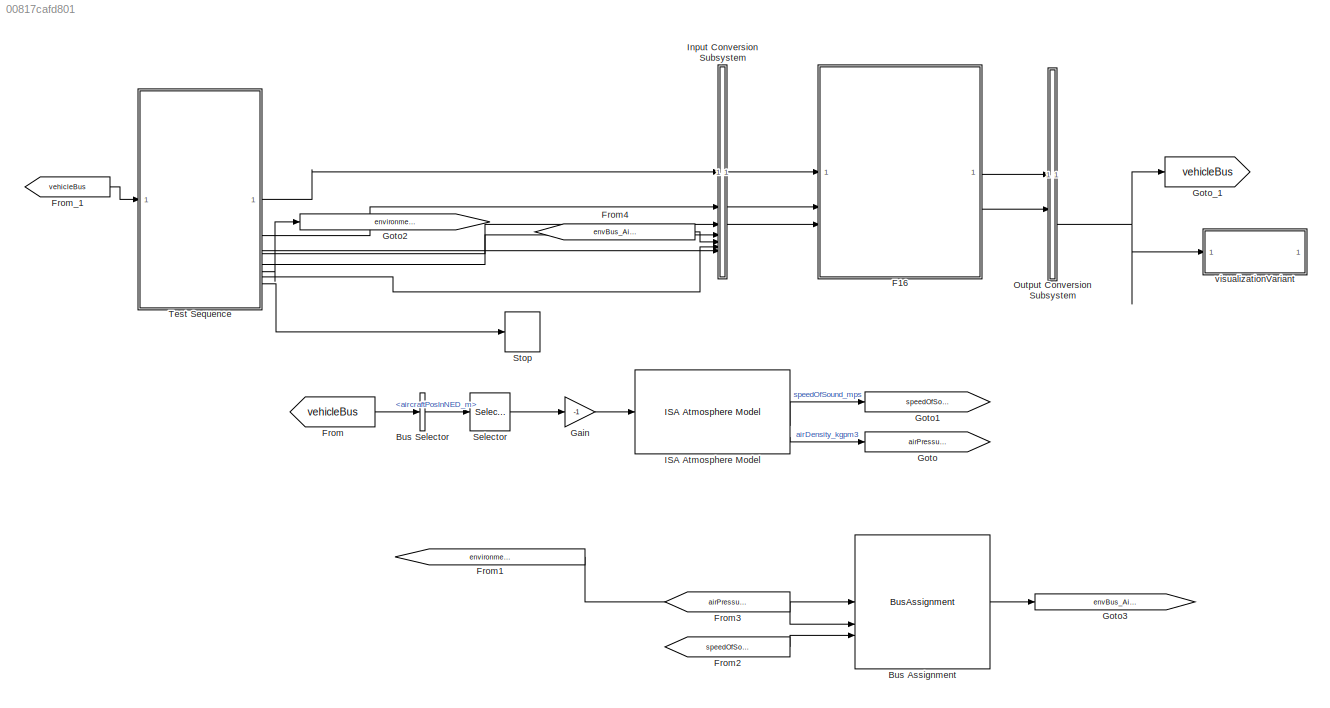
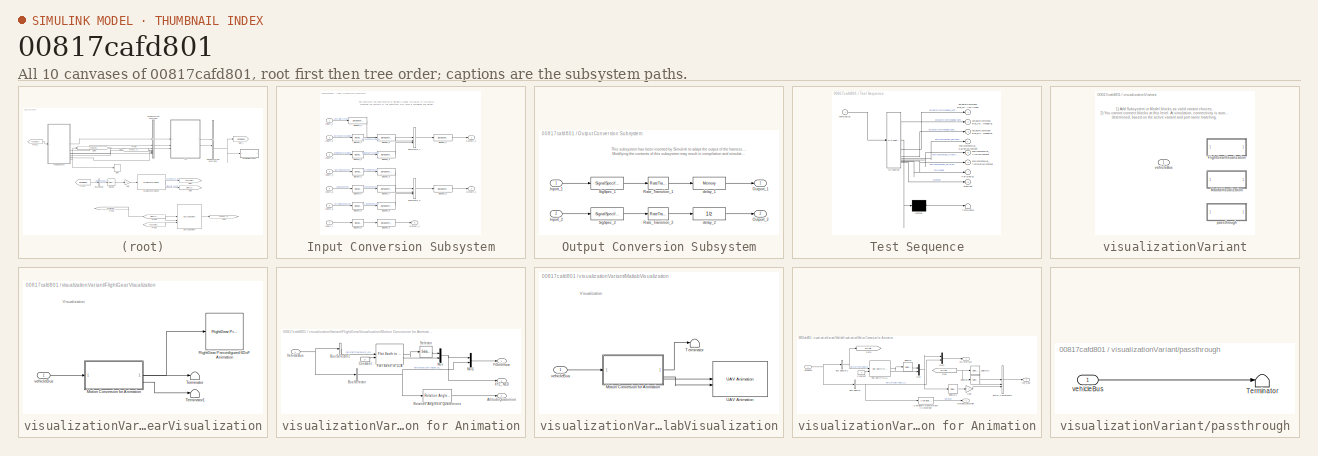
[diagram: thumbnail index - all 10 canvases of the model, root first then tree order]
MODEL slx_00817cafd801
KIND model
BLOCK [BusAssignment] Bus Assignment
  AssignedSignals = airDensity_kgpm3,speedOfSound_mps
BLOCK [BusSelector] Bus Selector
  OutputSignals = BodyStatesBus.aircraftPosInNED_m
BLOCK [ModelReference] F16
  ModelNameDialog = F16
  ModelReferenceVersion = 1.120
BLOCK [From] From
  GotoTag = vehicleBus
BLOCK [From] From1
  GotoTag = environmentBus_AirEnvironment
BLOCK [From] From2
  GotoTag = speedOfSound
BLOCK [From] From3
  GotoTag = airPressure_kgpm3
BLOCK [From] From4
  GotoTag = envBus_AirEnvManip
BLOCK [From] From_1
  GotoTag = vehicleBus
BLOCK [Gain] Gain
  Gain = -1
BLOCK [Goto] Goto
  GotoTag = airPressure_kgpm3
BLOCK [Goto] Goto1
  GotoTag = speedOfSound
BLOCK [Goto] Goto2
  GotoTag = environmentBus_AirEnvironment
BLOCK [Goto] Goto3
  GotoTag = envBus_AirEnvManip
BLOCK [Goto] Goto_1
  GotoTag = vehicleBus
BLOCK [Reference] ISA Atmosphere Model  REF=aerolibatmos2/ISA Atmosphere Model
  SourceBlock = aerolibatmos2/ISA Atmosphere Model
  SourceType = International Standard Atmosphere Model
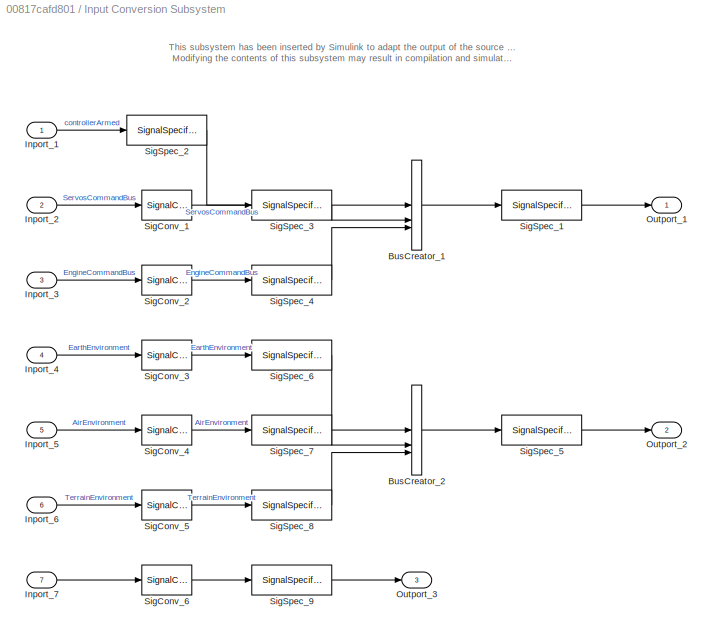
BLOCK [SubSystem] Input Conversion Subsystem
  AttributesFormatString = %<Description>
  Description = Signal spec.\nand routing
  Permissions = ReadOnly
  PermitHierarchicalResolution = ExplicitOnly
  Tag = __SLT_ICS__
  TreatAsGroupedWhenPropagatingVariantConditions = off
  UserDataPersistent = on
BLOCK [BusCreator] Input Conversion Subsystem/BusCreator_1
  InheritFromInputs = on
  Inputs = 3
  OutDataTypeStr = Bus: ActuatorCommandBus
BLOCK [BusCreator] Input Conversion Subsystem/BusCreator_2
  InheritFromInputs = on
  Inputs = 3
  OutDataTypeStr = Bus: EnvironmentBus
BLOCK [Inport] Input Conversion Subsystem/Inport_1
BLOCK [Inport] Input Conversion Subsystem/Inport_2
  Port = 2
BLOCK [Inport] Input Conversion Subsystem/Inport_3
  Port = 3
BLOCK [Inport] Input Conversion Subsystem/Inport_4
  Port = 4
BLOCK [Inport] Input Conversion Subsystem/Inport_5
  Port = 5
BLOCK [Inport] Input Conversion Subsystem/Inport_6
  Port = 6
BLOCK [Inport] Input Conversion Subsystem/Inport_7
  Port = 7
BLOCK [Outport] Input Conversion Subsystem/Outport_1
BLOCK [Outport] Input Conversion Subsystem/Outport_2
  Port = 2
BLOCK [Outport] Input Conversion Subsystem/Outport_3
  Port = 3
BLOCK [SignalConversion] Input Conversion Subsystem/SigConv_1
  ConversionOutput = Nonvirtual bus
  OverrideOpt = off
BLOCK [SignalConversion] Input Conversion Subsystem/SigConv_2
  ConversionOutput = Nonvirtual bus
  OverrideOpt = off
BLOCK [SignalConversion] Input Conversion Subsystem/SigConv_3
  ConversionOutput = Nonvirtual bus
  OverrideOpt = off
BLOCK [SignalConversion] Input Conversion Subsystem/SigConv_4
  ConversionOutput = Nonvirtual bus
  OverrideOpt = off
BLOCK [SignalConversion] Input Conversion Subsystem/SigConv_5
  ConversionOutput = Nonvirtual bus
  OverrideOpt = off
BLOCK [SignalConversion] Input Conversion Subsystem/SigConv_6
  ConversionOutput = Virtual bus
  OverrideOpt = off
BLOCK [SignalSpecification] Input Conversion Subsystem/SigSpec_1
  OutDataTypeStr = Bus: ActuatorCommandBus
  SampleTime = [-1, 0]
BLOCK [SignalSpecification] Input Conversion Subsystem/SigSpec_2
  Dimensions = [1]
  OutDataTypeStr = double
  SampleTime = [-1, 0]
  SignalType = real
  VarSizeSig = No
BLOCK [SignalSpecification] Input Conversion Subsystem/SigSpec_3
  BusOutputAsStruct = on
  Dimensions = [1]
  OutDataTypeStr = Bus: ServosCommandBus
  SampleTime = [-1, 0]
  SignalType = real
  VarSizeSig = No
BLOCK [SignalSpecification] Input Conversion Subsystem/SigSpec_4
  BusOutputAsStruct = on
  Dimensions = [1]
  OutDataTypeStr = Bus: EngineCommandBus
  SampleTime = [-1, 0]
  SignalType = real
  VarSizeSig = No
BLOCK [SignalSpecification] Input Conversion Subsystem/SigSpec_5
  OutDataTypeStr = Bus: EnvironmentBus
  SampleTime = [-1, 0]
BLOCK [SignalSpecification] Input Conversion Subsystem/SigSpec_6
  BusOutputAsStruct = on
  Dimensions = [1]
  OutDataTypeStr = Bus: EarthEnvironmentBus
  SampleTime = [-1, 0]
  SignalType = real
  VarSizeSig = No
BLOCK [SignalSpecification] Input Conversion Subsystem/SigSpec_7
  BusOutputAsStruct = on
  Dimensions = [1]
  OutDataTypeStr = Bus: AirEnvironmentBus
  SampleTime = [-1, 0]
  SignalType = real
  VarSizeSig = No
BLOCK [SignalSpecification] Input Conversion Subsystem/SigSpec_8
  BusOutputAsStruct = on
  Dimensions = [1]
  OutDataTypeStr = Bus: TerrainEnvironmentBus
  SampleTime = [-1, 0]
  SignalType = real
  VarSizeSig = No
BLOCK [SignalSpecification] Input Conversion Subsystem/SigSpec_9
  OutDataTypeStr = Bus: FailureBus
BLOCK [SubSystem] Output Conversion Subsystem
  AttributesFormatString = %<Description>
  Description = Signal spec.\nand routing
  Permissions = ReadOnly
  PermitHierarchicalResolution = ExplicitOnly
  Tag = __SLT_OCS__
  TreatAsGroupedWhenPropagatingVariantConditions = off
  UserDataPersistent = on
BLOCK [Inport] Output Conversion Subsystem/Inport_1
BLOCK [Inport] Output Conversion Subsystem/Inport_2
  Port = 2
BLOCK [Outport] Output Conversion Subsystem/Outport_1
BLOCK [Outport] Output Conversion Subsystem/Outport_2
  Port = 2
BLOCK [RateTransition] Output Conversion Subsystem/Rate_Transition_1
  OutPortSampleTimeOpt = Inherit
BLOCK [RateTransition] Output Conversion Subsystem/Rate_Transition_2
  OutPortSampleTimeOpt = Inherit
BLOCK [SignalSpecification] Output Conversion Subsystem/SigSpec_1
  Dimensions = [1]
  OutDataTypeStr = Bus: VehicleBus
  SignalType = real
  VarSizeSig = No
BLOCK [SignalSpecification] Output Conversion Subsystem/SigSpec_2
  Dimensions = [1]
  OutDataTypeStr = Bus: ActuatorBus
  SignalType = real
  VarSizeSig = No
BLOCK [Memory] Output Conversion Subsystem/delay_1
  InitialCondition = IC1
BLOCK [UnitDelay] Output Conversion Subsystem/delay_2
  InitialCondition = IC2
  SampleTime = -1
BLOCK [Selector] Selector
  IndexOptions = Index vector (dialog)
  Indices = 3
  InputPortWidth = 3
  OutputSizes = 1
BLOCK [Stop] Stop
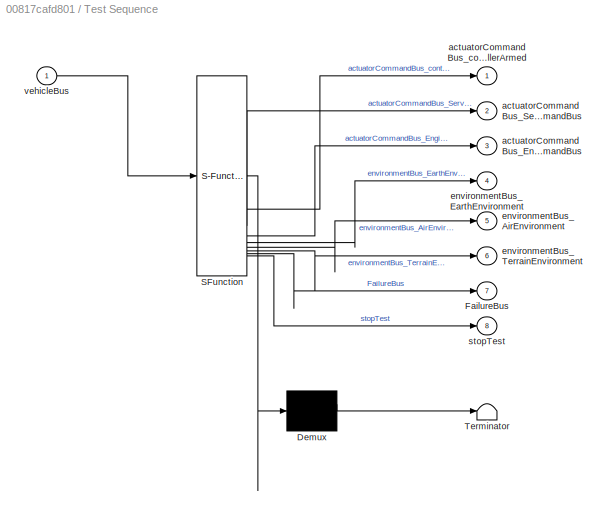
BLOCK [SubSystem] Test Sequence
  ErrorFcn = Stateflow.Translate.translate
  PermitHierarchicalResolution = ExplicitOnly
  SFBlockType = Test Sequence
  ShowPortLabels = none
  TreatAsAtomicUnit = on
BLOCK [Demux] Test Sequence/ Demux 
  Outputs = 1
BLOCK [S-Function] Test Sequence/ SFunction 
  EnableBusSupport = on
  FunctionName = sf_sfun
  Parameters = 1,terrainHeightNED_m
  PortCounts = [1 9]
  SFcnIsStateOwnerBlock = off
  SFunctionDeploymentMode = off
  Tag = Stateflow S-Function 4
BLOCK [Terminator] Test Sequence/ Terminator 
BLOCK [Outport] Test Sequence/FailureBus
  Port = 7
BLOCK [Outport] Test Sequence/actuatorCommandBus_EngineCommandBus
  Port = 3
BLOCK [Outport] Test Sequence/actuatorCommandBus_ServosCommandBus
  Port = 2
BLOCK [Outport] Test Sequence/actuatorCommandBus_controllerArmed
BLOCK [Outport] Test Sequence/environmentBus_AirEnvironment
  Port = 5
BLOCK [Outport] Test Sequence/environmentBus_EarthEnvironment
  Port = 4
BLOCK [Outport] Test Sequence/environmentBus_TerrainEnvironment
  Port = 6
BLOCK [Outport] Test Sequence/stopTest
  Port = 8
BLOCK [Inport] Test Sequence/vehicleBus
BLOCK [SubSystem] visualizationVariant
  Commented = on
  Variant = on
BLOCK [SubSystem] visualizationVariant/FlightGearVisualization
  TreatAsAtomicUnit = on
  VariantControl = strcmp(visualizationType, "FlightGear")
BLOCK [Reference] visualizationVariant/FlightGearVisualization/FlightGear Preconfigured 6DoF Animation  REF=aerolibfltsims/FlightGear
Preconfigured
6DoF Animation
  SourceBlock = aerolibfltsims/FlightGear\nPreconfigured\n6DoF Animation
  SourceType = FlightGearQuick6DoFAnimation
BLOCK [SubSystem] visualizationVariant/FlightGearVisualization/Motion Conversion for Animation
BLOCK [Outport] visualizationVariant/FlightGearVisualization/Motion Conversion for Animation/AttitudeQuaternion
  Port = 3
  VectorParamsAs1DForOutWhenUnconnected = off
BLOCK [BusSelector] visualizationVariant/FlightGearVisualization/Motion Conversion for Animation/Bus Selector
  OutputSignals = BodyStates.aircraftEulerAngles_rad
BLOCK [BusSelector] visualizationVariant/FlightGearVisualization/Motion Conversion for Animation/Bus Selector1
  OutputSignals = BodyStates.aircraftPosInNED_m
BLOCK [Constant] visualizationVariant/FlightGearVisualization/Motion Conversion for Animation/Constant
  Value = 0
BLOCK [Outport] visualizationVariant/FlightGearVisualization/Motion Conversion for Animation/FGInterface
  VectorParamsAs1DForOutWhenUnconnected = off
BLOCK [Reference] visualizationVariant/FlightGearVisualization/Motion Conversion for Animation/Flat Earth to LLA  REF=aerolibtransform2/Flat Earth to LLA
  SourceBlock = aerolibtransform2/Flat Earth to LLA
  SourceType = Flat Earth to LLA
BLOCK [Mux] visualizationVariant/FlightGearVisualization/Motion Conversion for Animation/Mux
  DisplayOption = bar
  Inputs = 2
BLOCK [Mux] visualizationVariant/FlightGearVisualization/Motion Conversion for Animation/Mux1
  DisplayOption = bar
  Inputs = 2
BLOCK [Reference] visualizationVariant/FlightGearVisualization/Motion Conversion for Animation/Rotation Angles to Quaternions  REF=sharedtransform/Rotation Angles to Quaternions
  AttributesFormatString = Rotation Order: %<rotationOrder>
  LibrarySourceBlock = aerolibtransform2/Rotation Angles to Quaternions
  SourceBlock = sharedtransform/Rotation Angles to Quaternions
  SourceType = Ang2Quat
BLOCK [Selector] visualizationVariant/FlightGearVisualization/Motion Conversion for Animation/Selector
  IndexMode = Zero-based
  IndexOptions = Index vector (dialog)
  Indices = [1 0]
  InputPortWidth = 2
  OutputSizes = 1
BLOCK [Inport] visualizationVariant/FlightGearVisualization/Motion Conversion for Animation/VehicleBus
  OutDataTypeStr = Bus: VehicleBus
BLOCK [Outport] visualizationVariant/FlightGearVisualization/Motion Conversion for Animation/XYZ_NED
  Port = 2
  VectorParamsAs1DForOutWhenUnconnected = off
BLOCK [Terminator] visualizationVariant/FlightGearVisualization/Terminator
BLOCK [Terminator] visualizationVariant/FlightGearVisualization/Terminator1
BLOCK [Inport] visualizationVariant/FlightGearVisualization/vehicleBus
BLOCK [SubSystem] visualizationVariant/MatlabVisualization
  VariantControl = strcmp(visualizationType, "Matlab")
BLOCK [SubSystem] visualizationVariant/MatlabVisualization/Motion Conversion for Animation
BLOCK [Outport] visualizationVariant/MatlabVisualization/Motion Conversion for Animation/AttitudeQuaternion
  Port = 3
  VectorParamsAs1DForOutWhenUnconnected = off
BLOCK [BusSelector] visualizationVariant/MatlabVisualization/Motion Conversion for Animation/Bus Selector
  OutputSignals = BodyStates.aircraftEulerAngles_rad
BLOCK [BusSelector] visualizationVariant/MatlabVisualization/Motion Conversion for Animation/Bus Selector1
  OutputSignals = BodyStates.aircraftPosInNED_m
BLOCK [Constant] visualizationVariant/MatlabVisualization/Motion Conversion for Animation/Constant
  Value = 0
BLOCK [Reference] visualizationVariant/MatlabVisualization/Motion Conversion for Animation/Coordinate Transformation Conversion  REF=robotcorelib/Coordinate Transformation Conversion
  NameLocation = top
  SourceBlock = robotcorelib/Coordinate Transformation Conversion
  SourceType = robotics.slcore.internal.block.CoordinateTransformationConversion
BLOCK [Outport] visualizationVariant/MatlabVisualization/Motion Conversion for Animation/FGInterface
  VectorParamsAs1DForOutWhenUnconnected = off
BLOCK [Reference] visualizationVariant/MatlabVisualization/Motion Conversion for Animation/Flat Earth to LLA  REF=aerolibtransform2/Flat Earth to LLA
  SourceBlock = aerolibtransform2/Flat Earth to LLA
  SourceType = Flat Earth to LLA
BLOCK [From] visualizationVariant/MatlabVisualization/Motion Conversion for Animation/From
  GotoTag = aircraftPosInNED_m
BLOCK [Gain] visualizationVariant/MatlabVisualization/Motion Conversion for Animation/Gain
  Gain = -1
BLOCK [Goto] visualizationVariant/MatlabVisualization/Motion Conversion for Animation/Goto
  GotoTag = aircraftPosInNED_m
BLOCK [Mux] visualizationVariant/MatlabVisualization/Motion Conversion for Animation/Mux
  DisplayOption = bar
  Inputs = 2
BLOCK [Mux] visualizationVariant/MatlabVisualization/Motion Conversion for Animation/Mux1
  DisplayOption = bar
  Inputs = 2
BLOCK [Selector] visualizationVariant/MatlabVisualization/Motion Conversion for Animation/Selector
  IndexMode = Zero-based
  IndexOptions = Index vector (dialog)
  Indices = [1 0]
  InputPortWidth = 2
  OutputSizes = 1
BLOCK [Selector] visualizationVariant/MatlabVisualization/Motion Conversion for Animation/Selector1
  IndexOptions = Index vector (dialog)
  Indices = 3
  InputPortWidth = 3
  OutputSizes = 1
BLOCK [Selector] visualizationVariant/MatlabVisualization/Motion Conversion for Animation/Selector2
  IndexOptions = Index vector (dialog)
  Indices = 1
  InputPortWidth = 3
  OutputSizes = 1
BLOCK [Selector] visualizationVariant/MatlabVisualization/Motion Conversion for Animation/Selector3
  IndexOptions = Index vector (dialog)
  Indices = 2
  InputPortWidth = 3
  OutputSizes = 1
BLOCK [Concatenate] visualizationVariant/MatlabVisualization/Motion Conversion for Animation/Vector Concatenate
  NumInputs = 3
BLOCK [Inport] visualizationVariant/MatlabVisualization/Motion Conversion for Animation/VehicleBus
  OutDataTypeStr = Bus: VehicleBus
BLOCK [Outport] visualizationVariant/MatlabVisualization/Motion Conversion for Animation/XYZ_NED
  Port = 2
  VectorParamsAs1DForOutWhenUnconnected = off
BLOCK [Terminator] visualizationVariant/MatlabVisualization/Terminator
BLOCK [Reference] visualizationVariant/MatlabVisualization/UAV Animation  REF=uavutilslib/UAV Animation
  SourceBlock = uavutilslib/UAV Animation
  SourceType = uav.sluav.internal.system.UAVAnimation
BLOCK [Inport] visualizationVariant/MatlabVisualization/vehicleBus
BLOCK [SubSystem] visualizationVariant/passthrough
  VariantControl = strcmp(visualizationType, "PassThrough")
BLOCK [Terminator] visualizationVariant/passthrough/Terminator
BLOCK [Inport] visualizationVariant/passthrough/vehicleBus
BLOCK [Inport] visualizationVariant/vehicleBus
ANNOTATION Input Conversion Subsystem: This subsystem has been inserted by Simulink to adapt the output of the source blocks to the interface required by the harnessed component. Modifying the contents of this subsystem may result in compilation and simulation failure.
ANNOTATION Output Conversion Subsystem: This subsystem has been inserted by Simulink to adapt the output of the harnessed component to the interface required by the sink blocks. Modifying the contents of this subsystem may result in compilation and simulation failure.
ANNOTATION visualizationVariant: 1) Add Subsystem or Model blocks as valid variant choices. 2) You cannot connect blocks at this level. At simulation, connectivity is automatically determined, based on the active variant and port name matching.
ANNOTATION visualizationVariant/FlightGearVisualization: Visualization
ANNOTATION visualizationVariant/MatlabVisualization: Visualization
LINE Bus Assignment:1 -> Goto3:1
LINE Bus Selector:1 -> Selector:1
LINE F16:1 -> Output Conversion Subsystem:1
LINE F16:2 -> Output Conversion Subsystem:2
LINE From1:1 -> Bus Assignment:1
LINE From2:1 -> Bus Assignment:3
LINE From3:1 -> Bus Assignment:2
LINE From4:1 -> Input Conversion Subsystem:5
LINE From:1 -> Bus Selector:1
LINE From_1:1 -> Test Sequence:1
LINE Gain:1 -> ISA Atmosphere Model:1
LINE ISA Atmosphere Model:2 -> Goto1:1
LINE ISA Atmosphere Model:4 -> Goto:1
LINE Input Conversion Subsystem/BusCreator_1:1 -> Input Conversion Subsystem/SigSpec_1:1
LINE Input Conversion Subsystem/BusCreator_2:1 -> Input Conversion Subsystem/SigSpec_5:1
LINE Input Conversion Subsystem/Inport_1:1 -> Input Conversion Subsystem/SigSpec_2:1
LINE Input Conversion Subsystem/Inport_2:1 -> Input Conversion Subsystem/SigConv_1:1
LINE Input Conversion Subsystem/Inport_3:1 -> Input Conversion Subsystem/SigConv_2:1
LINE Input Conversion Subsystem/Inport_4:1 -> Input Conversion Subsystem/SigConv_3:1
LINE Input Conversion Subsystem/Inport_5:1 -> Input Conversion Subsystem/SigConv_4:1
LINE Input Conversion Subsystem/Inport_6:1 -> Input Conversion Subsystem/SigConv_5:1
LINE Input Conversion Subsystem/Inport_7:1 -> Input Conversion Subsystem/SigConv_6:1
LINE Input Conversion Subsystem/SigConv_1:1 -> Input Conversion Subsystem/SigSpec_3:1
LINE Input Conversion Subsystem/SigConv_2:1 -> Input Conversion Subsystem/SigSpec_4:1
LINE Input Conversion Subsystem/SigConv_3:1 -> Input Conversion Subsystem/SigSpec_6:1
LINE Input Conversion Subsystem/SigConv_4:1 -> Input Conversion Subsystem/SigSpec_7:1
LINE Input Conversion Subsystem/SigConv_5:1 -> Input Conversion Subsystem/SigSpec_8:1
LINE Input Conversion Subsystem/SigConv_6:1 -> Input Conversion Subsystem/SigSpec_9:1
LINE Input Conversion Subsystem/SigSpec_1:1 -> Input Conversion Subsystem/Outport_1:1
LINE Input Conversion Subsystem/SigSpec_2:1 -> Input Conversion Subsystem/BusCreator_1:1
LINE Input Conversion Subsystem/SigSpec_3:1 -> Input Conversion Subsystem/BusCreator_1:2
LINE Input Conversion Subsystem/SigSpec_4:1 -> Input Conversion Subsystem/BusCreator_1:3
LINE Input Conversion Subsystem/SigSpec_5:1 -> Input Conversion Subsystem/Outport_2:1
LINE Input Conversion Subsystem/SigSpec_6:1 -> Input Conversion Subsystem/BusCreator_2:1
LINE Input Conversion Subsystem/SigSpec_7:1 -> Input Conversion Subsystem/BusCreator_2:2
LINE Input Conversion Subsystem/SigSpec_8:1 -> Input Conversion Subsystem/BusCreator_2:3
LINE Input Conversion Subsystem/SigSpec_9:1 -> Input Conversion Subsystem/Outport_3:1
LINE Input Conversion Subsystem:1 -> F16:1
LINE Input Conversion Subsystem:2 -> F16:2
LINE Input Conversion Subsystem:3 -> F16:3
LINE Output Conversion Subsystem/Inport_1:1 -> Output Conversion Subsystem/SigSpec_1:1
LINE Output Conversion Subsystem/Inport_2:1 -> Output Conversion Subsystem/SigSpec_2:1
LINE Output Conversion Subsystem/Rate_Transition_1:1 -> Output Conversion Subsystem/delay_1:1
LINE Output Conversion Subsystem/Rate_Transition_2:1 -> Output Conversion Subsystem/delay_2:1
LINE Output Conversion Subsystem/SigSpec_1:1 -> Output Conversion Subsystem/Rate_Transition_1:1
LINE Output Conversion Subsystem/SigSpec_2:1 -> Output Conversion Subsystem/Rate_Transition_2:1
LINE Output Conversion Subsystem/delay_1:1 -> Output Conversion Subsystem/Outport_1:1
LINE Output Conversion Subsystem/delay_2:1 -> Output Conversion Subsystem/Outport_2:1
NET Output Conversion Subsystem:1 -> Goto_1:1, visualizationVariant:1
LINE Selector:1 -> Gain:1
LINE Test Sequence:1 -> Input Conversion Subsystem:1
LINE Test Sequence:2 -> Input Conversion Subsystem:2
LINE Test Sequence:3 -> Input Conversion Subsystem:3
LINE Test Sequence:4 -> Input Conversion Subsystem:4
LINE Test Sequence:5 -> Goto2:1
LINE Test Sequence:6 -> Input Conversion Subsystem:6
LINE Test Sequence:7 -> Input Conversion Subsystem:7
LINE Test Sequence:8 -> Stop:1
LINE visualizationVariant/FlightGearVisualization/Motion Conversion for Animation/Bus Selector1:1 -> visualizationVariant/FlightGearVisualization/Motion Conversion for Animation/Flat Earth to LLA:1
NET visualizationVariant/FlightGearVisualization/Motion Conversion for Animation/Bus Selector:1 -> visualizationVariant/FlightGearVisualization/Motion Conversion for Animation/Mux1:2, visualizationVariant/FlightGearVisualization/Motion Conversion for Animation/Rotation Angles to Quaternions:1
LINE visualizationVariant/FlightGearVisualization/Motion Conversion for Animation/Constant:1 -> visualizationVariant/FlightGearVisualization/Motion Conversion for Animation/Flat Earth to LLA:2
LINE visualizationVariant/FlightGearVisualization/Motion Conversion for Animation/Flat Earth to LLA:1 -> visualizationVariant/FlightGearVisualization/Motion Conversion for Animation/Selector:1
LINE visualizationVariant/FlightGearVisualization/Motion Conversion for Animation/Flat Earth to LLA:2 -> visualizationVariant/FlightGearVisualization/Motion Conversion for Animation/Mux:2
LINE visualizationVariant/FlightGearVisualization/Motion Conversion for Animation/Mux1:1 -> visualizationVariant/FlightGearVisualization/Motion Conversion for Animation/FGInterface:1
NET visualizationVariant/FlightGearVisualization/Motion Conversion for Animation/Mux:1 -> visualizationVariant/FlightGearVisualization/Motion Conversion for Animation/Mux1:1, visualizationVariant/FlightGearVisualization/Motion Conversion for Animation/XYZ_NED:1
LINE visualizationVariant/FlightGearVisualization/Motion Conversion for Animation/Rotation Angles to Quaternions:1 -> visualizationVariant/FlightGearVisualization/Motion Conversion for Animation/AttitudeQuaternion:1
LINE visualizationVariant/FlightGearVisualization/Motion Conversion for Animation/Selector:1 -> visualizationVariant/FlightGearVisualization/Motion Conversion for Animation/Mux:1
NET visualizationVariant/FlightGearVisualization/Motion Conversion for Animation/VehicleBus:1 -> visualizationVariant/FlightGearVisualization/Motion Conversion for Animation/Bus Selector1:1, visualizationVariant/FlightGearVisualization/Motion Conversion for Animation/Bus Selector:1
LINE visualizationVariant/FlightGearVisualization/Motion Conversion for Animation:1 -> visualizationVariant/FlightGearVisualization/FlightGear Preconfigured 6DoF Animation:1
LINE visualizationVariant/FlightGearVisualization/Motion Conversion for Animation:2 -> visualizationVariant/FlightGearVisualization/Terminator:1
LINE visualizationVariant/FlightGearVisualization/Motion Conversion for Animation:3 -> visualizationVariant/FlightGearVisualization/Terminator1:1
LINE visualizationVariant/FlightGearVisualization/vehicleBus:1 -> visualizationVariant/FlightGearVisualization/Motion Conversion for Animation:1
NET visualizationVariant/MatlabVisualization/Motion Conversion for Animation/Bus Selector1:1 -> visualizationVariant/MatlabVisualization/Motion Conversion for Animation/Flat Earth to LLA:1, visualizationVariant/MatlabVisualization/Motion Conversion for Animation/Goto:1
NET visualizationVariant/MatlabVisualization/Motion Conversion for Animation/Bus Selector:1 -> visualizationVariant/MatlabVisualization/Motion Conversion for Animation/Coordinate Transformation Conversion:1, visualizationVariant/MatlabVisualization/Motion Conversion for Animation/Mux1:2
LINE visualizationVariant/MatlabVisualization/Motion Conversion for Animation/Constant:1 -> visualizationVariant/MatlabVisualization/Motion Conversion for Animation/Flat Earth to LLA:2
LINE visualizationVariant/MatlabVisualization/Motion Conversion for Animation/Coordinate Transformation Conversion:1 -> visualizationVariant/MatlabVisualization/Motion Conversion for Animation/AttitudeQuaternion:1
LINE visualizationVariant/MatlabVisualization/Motion Conversion for Animation/Flat Earth to LLA:1 -> visualizationVariant/MatlabVisualization/Motion Conversion for Animation/Selector:1
LINE visualizationVariant/MatlabVisualization/Motion Conversion for Animation/Flat Earth to LLA:2 -> visualizationVariant/MatlabVisualization/Motion Conversion for Animation/Mux:2
NET visualizationVariant/MatlabVisualization/Motion Conversion for Animation/From:1 -> visualizationVariant/MatlabVisualization/Motion Conversion for Animation/Selector2:1, visualizationVariant/MatlabVisualization/Motion Conversion for Animation/Selector3:1
LINE visualizationVariant/MatlabVisualization/Motion Conversion for Animation/Gain:1 -> visualizationVariant/MatlabVisualization/Motion Conversion for Animation/Vector Concatenate:3
LINE visualizationVariant/MatlabVisualization/Motion Conversion for Animation/Mux1:1 -> visualizationVariant/MatlabVisualization/Motion Conversion for Animation/FGInterface:1
NET visualizationVariant/MatlabVisualization/Motion Conversion for Animation/Mux:1 -> visualizationVariant/MatlabVisualization/Motion Conversion for Animation/Mux1:1, visualizationVariant/MatlabVisualization/Motion Conversion for Animation/Selector1:1
LINE visualizationVariant/MatlabVisualization/Motion Conversion for Animation/Selector1:1 -> visualizationVariant/MatlabVisualization/Motion Conversion for Animation/Gain:1
LINE visualizationVariant/MatlabVisualization/Motion Conversion for Animation/Selector2:1 -> visualizationVariant/MatlabVisualization/Motion Conversion for Animation/Vector Concatenate:1
LINE visualizationVariant/MatlabVisualization/Motion Conversion for Animation/Selector3:1 -> visualizationVariant/MatlabVisualization/Motion Conversion for Animation/Vector Concatenate:2
LINE visualizationVariant/MatlabVisualization/Motion Conversion for Animation/Selector:1 -> visualizationVariant/MatlabVisualization/Motion Conversion for Animation/Mux:1
LINE visualizationVariant/MatlabVisualization/Motion Conversion for Animation/Vector Concatenate:1 -> visualizationVariant/MatlabVisualization/Motion Conversion for Animation/XYZ_NED:1
NET visualizationVariant/MatlabVisualization/Motion Conversion for Animation/VehicleBus:1 -> visualizationVariant/MatlabVisualization/Motion Conversion for Animation/Bus Selector1:1, visualizationVariant/MatlabVisualization/Motion Conversion for Animation/Bus Selector:1
LINE visualizationVariant/MatlabVisualization/Motion Conversion for Animation:1 -> visualizationVariant/MatlabVisualization/Terminator:1
LINE visualizationVariant/MatlabVisualization/Motion Conversion for Animation:2 -> visualizationVariant/MatlabVisualization/UAV Animation:1
LINE visualizationVariant/MatlabVisualization/Motion Conversion for Animation:3 -> visualizationVariant/MatlabVisualization/UAV Animation:2
LINE visualizationVariant/MatlabVisualization/vehicleBus:1 -> visualizationVariant/MatlabVisualization/Motion Conversion for Animation:1
LINE visualizationVariant/passthrough/vehicleBus:1 -> visualizationVariant/passthrough/Terminator:1
note: NET lines group one-source signal fan-out (src -> all destinations, sorted); 1:1 wires keep LINE
CHART Test Sequence states=17 transitions=17
  STATE_LABEL 'Scenario_1'
  STATE_LABEL 'Initialize\n\n%% Initialize data outputs.\nactuatorCommandBus_controllerArmed = 0;\nactuatorCommandBus_ServosCommandBus.ServosCommandF16Bus.cmdAileron_nd = 0;\nactuatorCommandBus_ServosCommandBus.ServosCommandF16Bus.cmdElevator_nd = 0;\nactuatorCommandBus_ServosCommandBus.ServosCommandF16Bus.cmdRudder_nd = 0;\nactuatorCommandBus_EngineCommandBus.cmdThrottle_unit = 0;\nenvironmentBus_EarthEnvironment.gravi...<+692ch>'
  STATE_LABEL 'verifyZeroInputs\nverify(isClose(vehicleBus.AircraftForcesMomentsBus.forcesInBody_N(1), 0 ))\nverify(isClose(vehicleBus.AircraftForcesMomentsBus.forcesInBody_N(2), 0 ))\nverify(isClose(vehicleBus.AircraftForcesMomentsBus.forcesInBody_N(3), 0 ))\nverify(isClose(vehicleBus.AircraftForcesMomentsBus.momentsInBody_Nm(1),0))\nverify(isClose(vehicleBus.AircraftForcesMomentsBus.momentsInBody_Nm(2),0))\nverify(i...<+66ch>'
  STATE_LABEL 'throttleNoArm\nactuatorCommandBus_EngineCommandBus.cmdThrottle_unit = 0.1;\n'
  STATE_LABEL 'noThrottleArm\nactuatorCommandBus_controllerArmed = 1;\nactuatorCommandBus_EngineCommandBus.cmdThrottle_unit = 0.0;\n%actuatorCommandBus_ServosCommandBus.ServosCommandF16Bus.cmdElevator_nd = -0.1;'
  STATE_LABEL 'verifyZeroInputsAgain\nverify(isClose(vehicleBus.AircraftForcesMomentsBus.forcesInBody_N(1), 0 ))\nverify(isClose(vehicleBus.AircraftForcesMomentsBus.forcesInBody_N(2), 0 ))\nverify(isClose(vehicleBus.AircraftForcesMomentsBus.forcesInBody_N(3), 0 ))\nverify(isClose(vehicleBus.AircraftForcesMomentsBus.momentsInBody_Nm(1),0))\nverify(isClose(vehicleBus.AircraftForcesMomentsBus.momentsInBody_Nm(2),0))\nver...<+71ch>'
  STATE_LABEL 'armedAndSmallThrottle\nactuatorCommandBus_EngineCommandBus.cmdThrottle_unit = 0.25;\n'
  STATE_LABEL 'verifyThrottle\nverify(vehicleBus.AircraftForcesMomentsBus.forcesInBody_N(1) > 0)\nverify(isClose(vehicleBus.AircraftForcesMomentsBus.forcesInBody_N(2), 0 ))\nverify(isClose(vehicleBus.AircraftForcesMomentsBus.forcesInBody_N(3), 0 ))\nverify(isClose(vehicleBus.AircraftForcesMomentsBus.momentsInBody_Nm(1),0))\nverify(isClose(vehicleBus.AircraftForcesMomentsBus.momentsInBody_Nm(2),0))\nverify(isClose(vehi...<+55ch>'
  STATE_LABEL 'deflectElevatorCreatingNegPitch\nactuatorCommandBus_ServosCommandBus.ServosCommandF16Bus.cmdElevator_nd = 0.25;\nactuatorCommandBus_EngineCommandBus.cmdThrottle_unit = 0.75;'
  STATE_LABEL 'verifyPitchIntoGround\nverify(isClose(vehicleBus.AircraftForcesMomentsBus.momentsInBody_Nm(2), 0))\nverify(isClose(vehicleBus.BodyStatesBus.aircraftEulerAngles_rad(2) , 0))\nverify(isClose(vehicleBus.AircraftForcesMomentsBus.forcesInBody_N(3), 0))\nverify(vehicleBus.AircraftForcesMomentsBus.forcesInBody_N(1) > 0)\nverify(isClose(vehicleBus.AircraftForcesMomentsBus.forcesInBody_N(2), 0 ))'
  STATE_LABEL 'deflectElevator\nactuatorCommandBus_ServosCommandBus.ServosCommandF16Bus.cmdElevator_nd = -0.025;\nactuatorCommandBus_EngineCommandBus.cmdThrottle_unit = 1;\n'
  STATE_LABEL "verifydeflectElevator\nverify(isClose(vehicleBus.AircraftForcesMomentsBus.momentsInBody_Nm(2), 0, 'absTol', 0.01)) % Shouldn't be enough elevator to rotate vehicle\nverify(isClose(vehicleBus.BodyStatesBus.aircraftEulerAngles_rad(2), 0, 'absTol', 0.01 )) % Shouldn't be enough elevator to rotate vehicle\nverify(isClose(vehicleBus.AircraftForcesMomentsBus.forcesInBody_N(3), 0, 'absTol', 0.01))\nverify(ve...<+131ch>"
  STATE_LABEL 'rotate\nactuatorCommandBus_ServosCommandBus.ServosCommandF16Bus.cmdElevator_nd = -0.08;'
  STATE_LABEL 'verifyRotate\nverify(vehicleBus.AircraftForcesMomentsBus.momentsInBody_Nm(2) > 0)\nverify(vehicleBus.BodyStatesBus.aircraftEulerAngles_rad(2) > 0)\nverify(vehicleBus.AircraftForcesMomentsBus.forcesInBody_N(3) < 0)\nverify(vehicleBus.AircraftForcesMomentsBus.forcesInBody_N(1) > 0)\nverify(isClose(vehicleBus.AircraftForcesMomentsBus.forcesInBody_N(2), 0 ))'
  STATE_LABEL 'continueFlying\nactuatorCommandBus_ServosCommandBus.ServosCommandF16Bus.cmdElevator_nd = -0.04;\nactuatorCommandBus_EngineCommandBus.cmdThrottle_unit = 1;\n'
  STATE_LABEL 'verifyFlying\nverify(vehicleBus.BodyStatesBus.aircraftPosInNED_m(3) < 0)\nverify(vehicleBus.BodyStatesBus.aircraftEulerAngles_rad(2) > 0)\nverify(vehicleBus.AircraftForcesMomentsBus.forcesInBody_N(1) > 0)\nverify(isClose(vehicleBus.AircraftForcesMomentsBus.forcesInBody_N(2), 0 ))'
  STATE_LABEL 'EndTest\nstopTest = true;'
  STATE_LABEL '[\nafter(1,tick)\n]'
  STATE_LABEL '[\nafter(5,sec)\n]'
  STATE_LABEL '[\nafter(1,sec)\n]'
  STATE_LABEL '[\nafter(3,sec)\n]'
  STATE_LABEL '[\nafter(5,sec)\n]'
  STATE_LABEL '[\nafter(60,sec)\n]'
  STATE_LABEL '[\nafter(1,tick)\n]'
  STATE_LABEL '[\nafter(3,sec)\n]'
  STATE_LABEL '[\nafter(1,sec)\n]'
  STATE_LABEL '[\nafter(2,sec)\n]'
  STATE_LABEL '[\nafter(1,tick)\n]'
  STATE_LABEL '[\nafter(3,sec)\n]'
  STATE_LABEL '[\nafter(1,tick)\n]'
  STATE_LABEL '[\nafter(3,sec)\n]'
  STATE_LABEL '[\nafter(1,tick)\n]'
  STATE_LABEL 'Initialize\n\n%% Initialize data outputs.\nactuatorCommandBus_controllerArmed = 0;\nactuatorCommandBus_ServosCommandBus.ServosCommandF16Bus.cmdAileron_nd = 0;\nactuatorCommandBus_ServosCommandBus.ServosCommandF16Bus.cmdElevator_nd = 0;\nactuatorCommandBus_ServosCommandBus.ServosCommandF16Bus.cmdRudder_nd = 0;\nactuatorCommandBus_EngineCommandBus.cmdThrottle_unit = 0;\nenvironmentBus_EarthEnvironment.gravi...<+692ch>'
  STATE_LABEL 'verifyZeroInputs\nverify(isClose(vehicleBus.AircraftForcesMomentsBus.forcesInBody_N(1), 0 ))\nverify(isClose(vehicleBus.AircraftForcesMomentsBus.forcesInBody_N(2), 0 ))\nverify(isClose(vehicleBus.AircraftForcesMomentsBus.forcesInBody_N(3), 0 ))\nverify(isClose(vehicleBus.AircraftForcesMomentsBus.momentsInBody_Nm(1),0))\nverify(isClose(vehicleBus.AircraftForcesMomentsBus.momentsInBody_Nm(2),0))\nverify(i...<+66ch>'
  STATE_LABEL 'throttleNoArm\nactuatorCommandBus_EngineCommandBus.cmdThrottle_unit = 0.1;\n'
  STATE_LABEL 'noThrottleArm\nactuatorCommandBus_controllerArmed = 1;\nactuatorCommandBus_EngineCommandBus.cmdThrottle_unit = 0.0;\n%actuatorCommandBus_ServosCommandBus.ServosCommandF16Bus.cmdElevator_nd = -0.1;'
  STATE_LABEL 'verifyZeroInputsAgain\nverify(isClose(vehicleBus.AircraftForcesMomentsBus.forcesInBody_N(1), 0 ))\nverify(isClose(vehicleBus.AircraftForcesMomentsBus.forcesInBody_N(2), 0 ))\nverify(isClose(vehicleBus.AircraftForcesMomentsBus.forcesInBody_N(3), 0 ))\nverify(isClose(vehicleBus.AircraftForcesMomentsBus.momentsInBody_Nm(1),0))\nverify(isClose(vehicleBus.AircraftForcesMomentsBus.momentsInBody_Nm(2),0))\nver...<+71ch>'
  STATE_LABEL 'armedAndSmallThrottle\nactuatorCommandBus_EngineCommandBus.cmdThrottle_unit = 0.25;\n'
  STATE_LABEL 'verifyThrottle\nverify(vehicleBus.AircraftForcesMomentsBus.forcesInBody_N(1) > 0)\nverify(isClose(vehicleBus.AircraftForcesMomentsBus.forcesInBody_N(2), 0 ))\nverify(isClose(vehicleBus.AircraftForcesMomentsBus.forcesInBody_N(3), 0 ))\nverify(isClose(vehicleBus.AircraftForcesMomentsBus.momentsInBody_Nm(1),0))\nverify(isClose(vehicleBus.AircraftForcesMomentsBus.momentsInBody_Nm(2),0))\nverify(isClose(vehi...<+55ch>'
  STATE_LABEL 'deflectElevatorCreatingNegPitch\nactuatorCommandBus_ServosCommandBus.ServosCommandF16Bus.cmdElevator_nd = 0.25;\nactuatorCommandBus_EngineCommandBus.cmdThrottle_unit = 0.75;'
